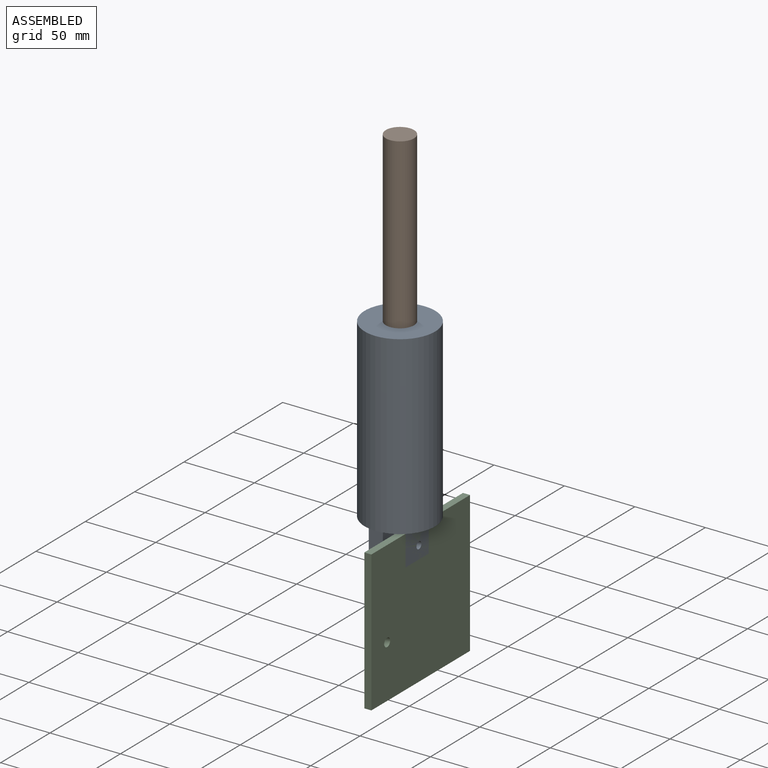
[diagram: assembled view]
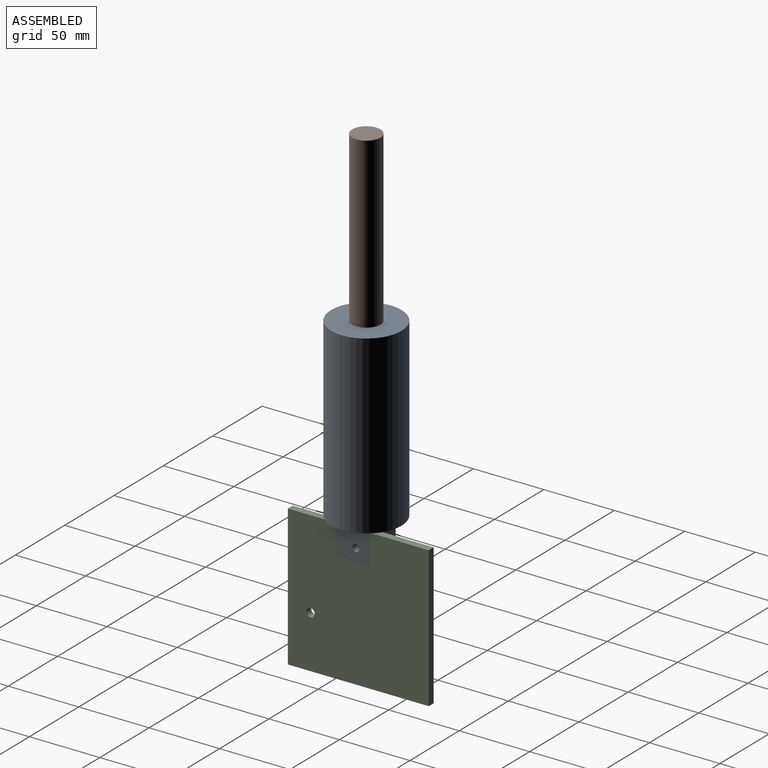
[diagram: assembled view, second angle]
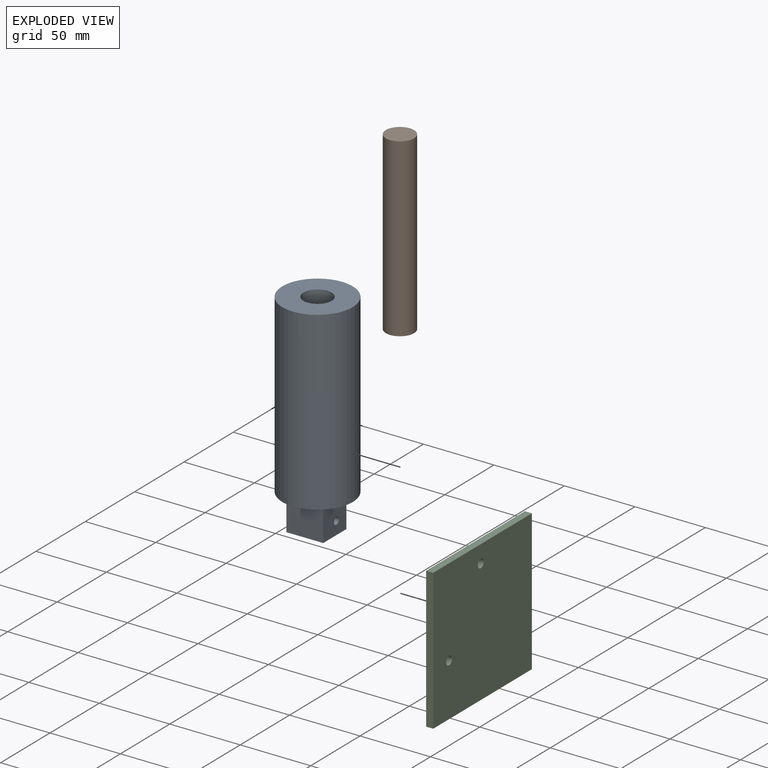
[diagram: exploded view]
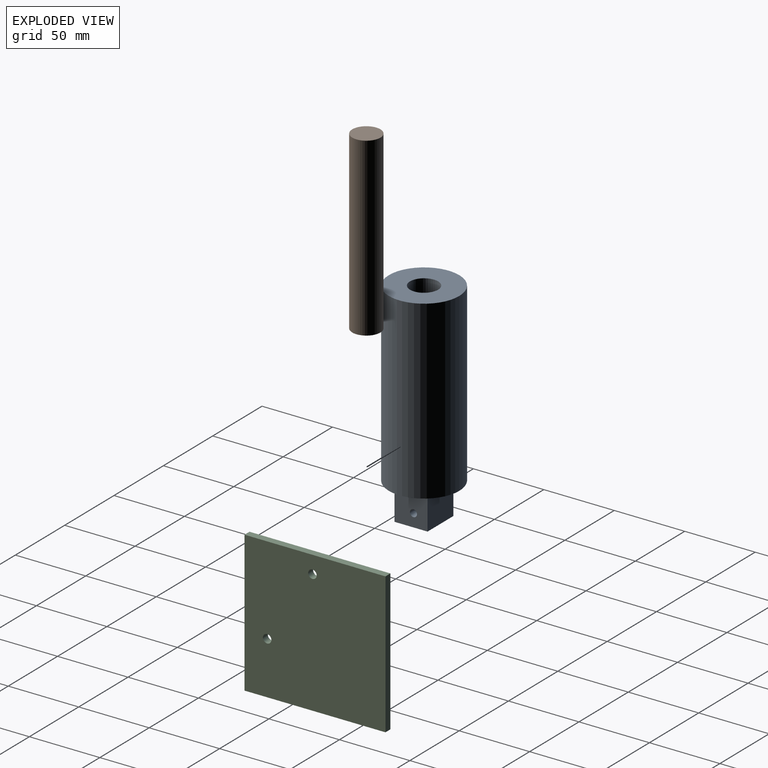
[diagram: exploded view, second angle]
ASSEMBLY  parts=3 mates=2
PART A: 11 faces, bbox 150x50x50 mm
  f0: plane 50x50mm, normal (1,0,0), area 1350.1mm2, adj f1,f3,f4,f5,f6
  f1: cylinder r=25mm len=125mm, axis (-1,0,0), area 19635mm2, adj f0,f2
  f2: plane 50x50mm, normal (-1,0,0), area 1649.3mm2, adj f1,f10
  f3: plane 26.15x25mm, normal (0,0,1), area 653.7mm2, adj f0,f4,f6,f7
  f4: plane 25x23.46mm, normal (0,-1,0), area 566.8mm2, adj f0,f3,f5,f7,f8
  f5: plane 26.15x25mm, normal (0,0,-1), area 653.7mm2, adj f0,f4,f6,f7
  f6: plane 25x23.46mm, normal (0,1,0), area 566.8mm2, adj f0,f3,f5,f7,f8
  f7: plane 26.15x23.46mm, normal (1,0,0), area 613.4mm2, adj f3,f4,f5,f6
  f8: cylinder r=2.5mm len=26.15mm, axis (0,1,0), area 410.7mm2, adj f4,f6
  f9: cone r=0mm half-angle=59deg, axis (-1,0,0), area 366.5mm2, adj f10
  f10: cylinder r=10mm len=125mm, axis (-1,0,0), area 7854mm2, adj f2,f9
PART B: 3 faces, bbox 125x20x20 mm
  f0: cylinder r=10mm len=125mm, axis (-1,0,0), area 7854mm2, adj f1,f2
  f1: plane 20x20mm, normal (1,0,0), area 314.2mm2, adj f0
  f2: plane 20x20mm, normal (-1,0,0), area 314.2mm2, adj f0
PART C: 8 faces, bbox 5x100x100 mm
  f0: plane 100x5mm, normal (0,1,0), area 500mm2, adj f1,f4,f6,f7
  f1: plane 100x5mm, normal (0,0,1), area 500mm2, adj f0,f2,f6,f7
  f2: plane 100x5mm, normal (0,-1,0), area 500mm2, adj f1,f4,f6,f7
  f3: cylinder r=3mm len=6mm, axis (-1,0,0), area 94.2mm2, adj f6,f7
  f4: plane 100x5mm, normal (0,0,-1), area 500mm2, adj f0,f2,f6,f7
  f5: cylinder r=3mm len=6mm, axis (-1,0,0), area 94.2mm2, adj f6,f7
  f6: plane 100x100mm, normal (1,0,0), area 9943.5mm2, adj f0,f1,f2,f3,f4,f5
  f7: plane 100x100mm, normal (-1,0,0), area 9943.5mm2, adj f0,f1,f2,f3,f4,f5
PLACE A rot(axis=(0.58,0.58,-0.58),120deg) t=(-187.57,-20.96,210.24)mm
PLACE B rot(axis=(0.58,0.58,-0.58),120deg) t=(-184.76,-129.02,330.14)mm
PLACE C t=(-112.94,-66.36,9.88)mm
MATE revolute A.f8 <-> C.f5  axis (1,0,0) through (-107.94,-78.93,69.34)mm
MATE slider B.f0 <-> A.f1  axis (0,0,1) through (-120.5,-80.19,267.64)mm
